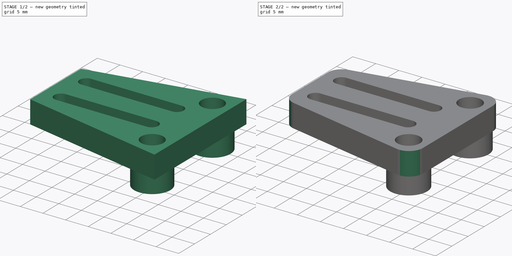
[diagram: build sequence overview — one tinted view per stage of 2, left to right]
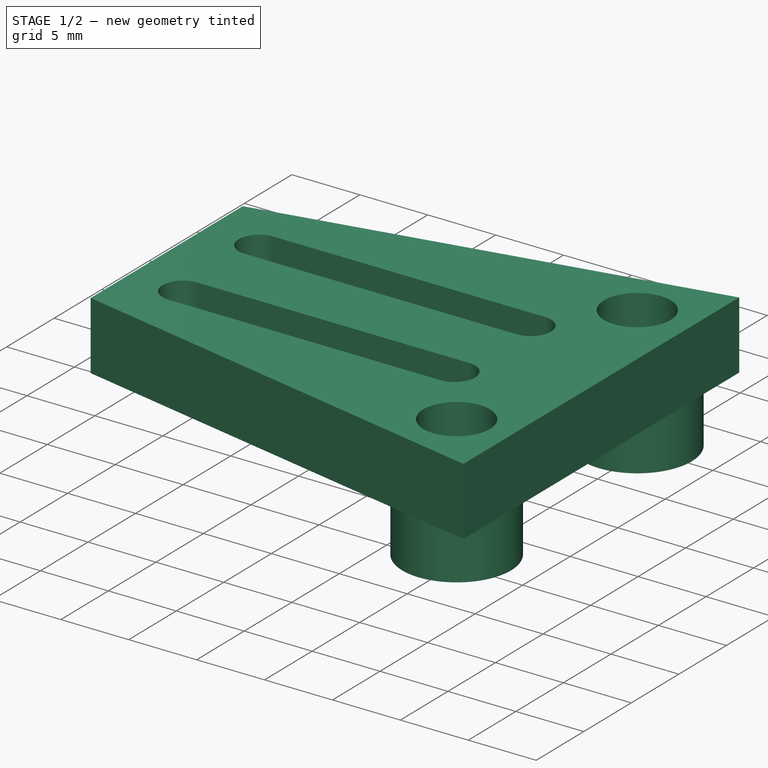
[diagram: stage 1 of 2 — iso view after this stage's code; geometry added in this stage tinted green]
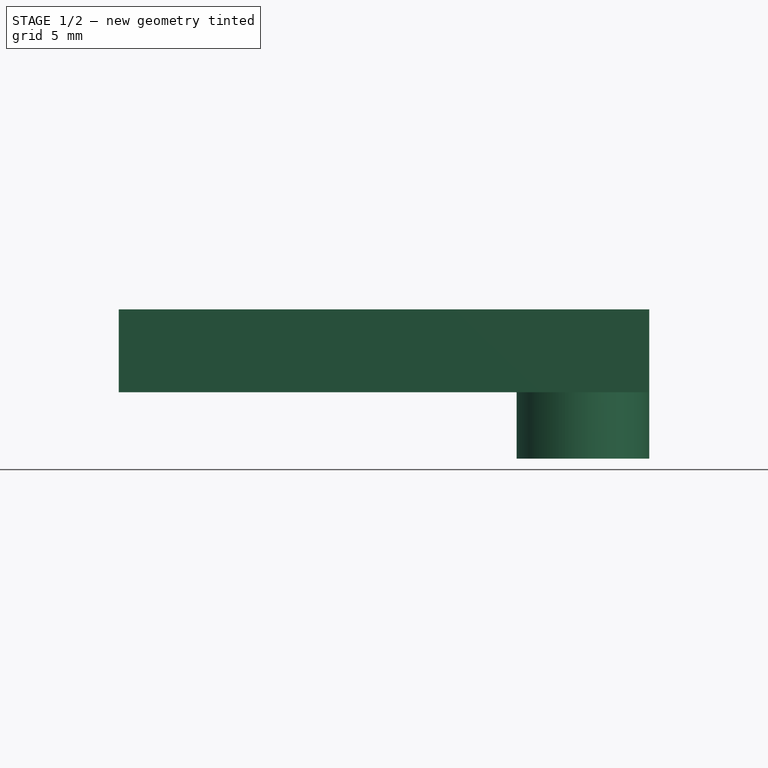
[diagram: stage 1 of 2 — front view after this stage's code; geometry added in this stage tinted green]
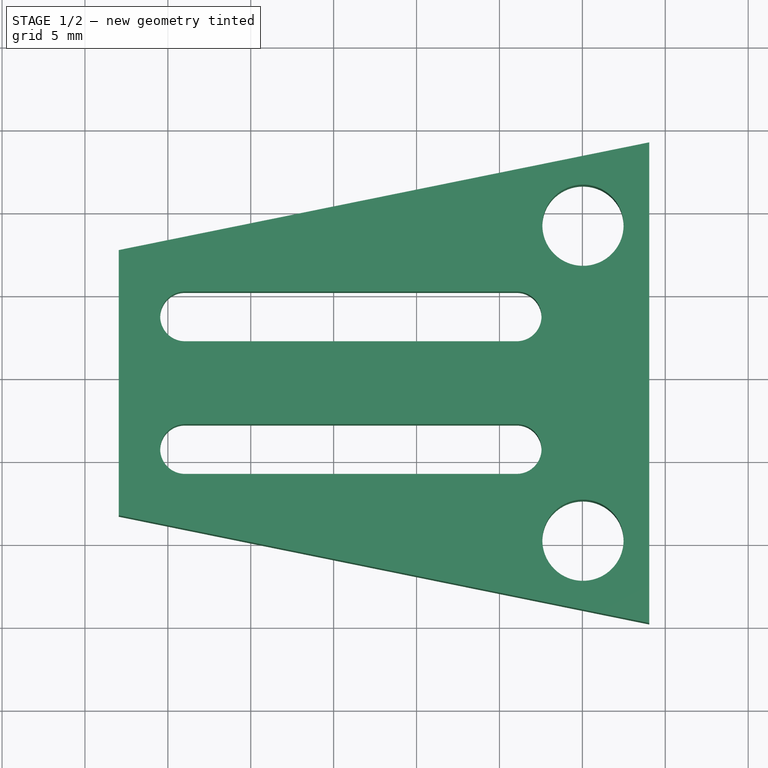
[diagram: stage 1 of 2 — top view after this stage's code; geometry added in this stage tinted green]
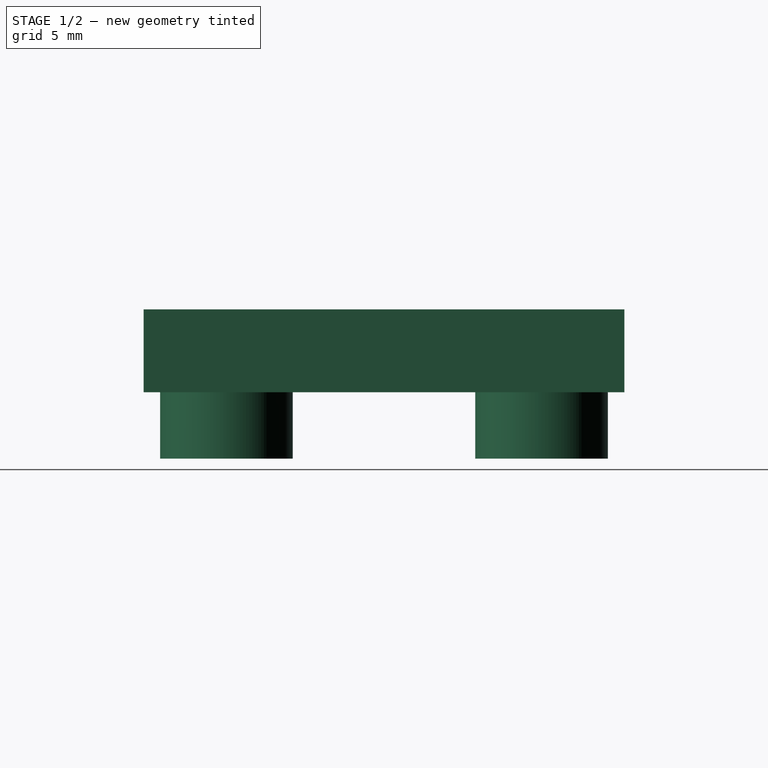
[diagram: stage 1 of 2 — right view after this stage's code; geometry added in this stage tinted green]
FCSTD DOCUMENT  (FreeCAD 1.0R38641 +468 (Git))
Label: 01end_switch
License: All rights reserved
LicenseURL: https://en.wikipedia.org/wiki/All_rights_reserved
objects: Sketcher::SketchObject×2, PartDesign::Pad×2, PartDesign::Fillet×1, PartDesign::Chamfer×1, PartDesign::Body×1
note: 17 computed .brp shape members not serialized (recipe doc carries the construction recipe); baked Part::Feature solids carry a one-line shape summary decoded from their .brp

FEATURE [Sketcher::SketchObject] Sketch
  ArcFitTolerance = 1e-06
  FullyConstrained = false
  MakeInternals = false
  sketch-geometry (16):
    g0: Circle CenterX=185.037 CenterY=80.148 CenterZ=0 NormalX=0 NormalY=0 NormalZ=-1 AngleXU=0 Radius=2.45
    g1: Circle CenterX=185.037 CenterY=99.148 CenterZ=0 NormalX=0 NormalY=0 NormalZ=-1 AngleXU=0 Radius=2.45
    g2: ArcOfCircle CenterX=181.037 CenterY=93.648 CenterZ=0 NormalX=0 NormalY=0 NormalZ=1 AngleXU=0 Radius=1.5 StartAngle=4.71239 EndAngle=7.85398
    g3: ArcOfCircle CenterX=161.037 CenterY=93.648 CenterZ=0 NormalX=0 NormalY=0 NormalZ=1 AngleXU=0 Radius=1.5 StartAngle=1.5708 EndAngle=4.71239
    g4: LineSegment StartX=181.037 StartY=92.148 StartZ=0 EndX=161.037 EndY=92.148 EndZ=0
    g5: LineSegment StartX=181.037 StartY=95.148 StartZ=0 EndX=161.037 EndY=95.148 EndZ=0
    g6: ArcOfCircle CenterX=181.037 CenterY=85.648 CenterZ=0 NormalX=0 NormalY=0 NormalZ=1 AngleXU=0 Radius=1.5 StartAngle=4.71239 EndAngle=7.85398
    g7: ArcOfCircle CenterX=161.037 CenterY=85.648 CenterZ=0 NormalX=0 NormalY=0 NormalZ=1 AngleXU=0 Radius=1.5 StartAngle=1.5708 EndAngle=4.71239
    g8: LineSegment StartX=181.037 StartY=84.148 StartZ=0 EndX=161.037 EndY=84.148 EndZ=0
    g9: LineSegment StartX=181.037 StartY=87.148 StartZ=0 EndX=161.037 EndY=87.148 EndZ=0
    g10: LineSegment StartX=189.037 StartY=104.148 StartZ=0 EndX=157.037 EndY=97.648 EndZ=0
    g11: LineSegment StartX=157.037 StartY=97.648 StartZ=0 EndX=157.037 EndY=81.648 EndZ=0
    g12: LineSegment StartX=157.037 StartY=81.648 StartZ=0 EndX=189.037 EndY=75.148 EndZ=0
    g13: LineSegment StartX=189.037 StartY=104.148 StartZ=0 EndX=189.037 EndY=75.148 EndZ=0
    g14: GeomPoint X=185.037 Y=89.648 Z=0
    g15: LineSegment [constr] StartX=208.544 StartY=89.648 StartZ=0 EndX=137.376 EndY=89.648 EndZ=0
  constraints (38):
    c: Vertical(g0,g1)
    c: DistanceY(g0,g1) = 19
    c: Tangent(g2,g4) = 1.5708
    c: Tangent(g2,g5) = -1.5708
    c: Tangent(g3,g4) = 1.5708
    c: Tangent(g3,g5) = -1.5708
    c: Equal(g2,g3)
    c: Radius(g2) = 1.5
    c: Horizontal(g4)
    c: Tangent(g6,g8) = 1.5708
    c: Tangent(g6,g9) = -1.5708
    c: Tangent(g7,g8) = 1.5708
    c: Tangent(g7,g9) = -1.5708
    c: Equal(g6,g7)
    c: Radius(g6) = 1.5
    c: Horizontal(g8)
    c: Vertical(g3,g7)
    c: Vertical(g2,g6)
    c: Coincident(g10,g11)
    c: Vertical(g11)
    c: Coincident(g11,g12)
    c: Equal(g1,g0)
    c: Coincident(g10,g13)
    c: Coincident(g13,g12)
    c: Vertical(g13)
    c: DistanceY(g3,g10) = 4
    c: DistanceY(g11,g7) = 4
    c: DistanceX(g10,g3) = 4
    c: DistanceY(g6,g2) = 8
    c: DistanceY(g1,g10) = 5
    c: Symmetric(g0,g1,g14)
    c: PointOnObject(g14,g15)
    c: Symmetric(g2,g6,g15)
    c: DistanceX(g2,g1) = 4
    c: DistanceX(g1,g10) = 4
    c: DistanceY(g12,g0) = 5
    c: Diameter(g1) = 4.9
    c: DistanceX(g3,g2) = 20
FEATURE [PartDesign::Pad] Pad
  Direction = (0,0,1)
  Length = 5
  Length2 = 10
  Profile = -> Sketch
  ReferenceAxis = -> Sketch [N_Axis]
  Refine = true
  Suppressed = false
  Type = 0
FEATURE [Sketcher::SketchObject] Sketch001
  ArcFitTolerance = 1e-06
  ExternalGeometry = -> [Sketch]
  FullyConstrained = false
  MakeInternals = false
  MapMode = 5
  Placement = pos=(0,0,5) rot=(0,0,1;0rad)
  sketch-geometry (4):
    g0: Circle CenterX=185.037 CenterY=99.148 CenterZ=0 NormalX=0 NormalY=0 NormalZ=1 AngleXU=0 Radius=4
    g1: Circle CenterX=185.037 CenterY=80.148 CenterZ=0 NormalX=0 NormalY=0 NormalZ=1 AngleXU=0 Radius=4
    g2: Circle CenterX=185.037 CenterY=99.148 CenterZ=0 NormalX=0 NormalY=0 NormalZ=1 AngleXU=0 Radius=2.48421
    g3: Circle CenterX=185.037 CenterY=80.148 CenterZ=0 NormalX=0 NormalY=0 NormalZ=1 AngleXU=0 Radius=2.48804
  constraints (6):
    c: Equal(g1,g0)
    c: Coincident(g-4,g1)
    c: Coincident(g-3,g0)
    c: Coincident(g2,g0)
    c: Coincident(g3,g1)
    c: Tangent(g-5,g0)
FEATURE [PartDesign::Pad] Pad001
  BaseFeature = -> Pad
  Direction = (0,0,1)
  Length = 9
  Length2 = 10
  Profile = -> Sketch001
  ReferenceAxis = -> Sketch001 [N_Axis]
  Refine = true
  Reversed = true
  Suppressed = false
  Type = 0
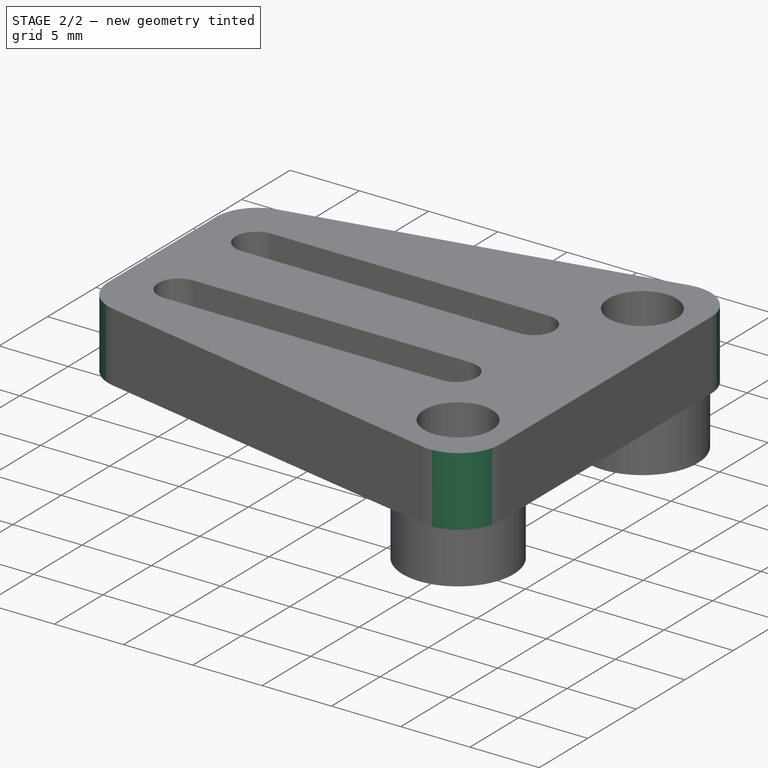
[diagram: stage 2 of 2 — iso view after this stage's code; geometry added in this stage tinted green]
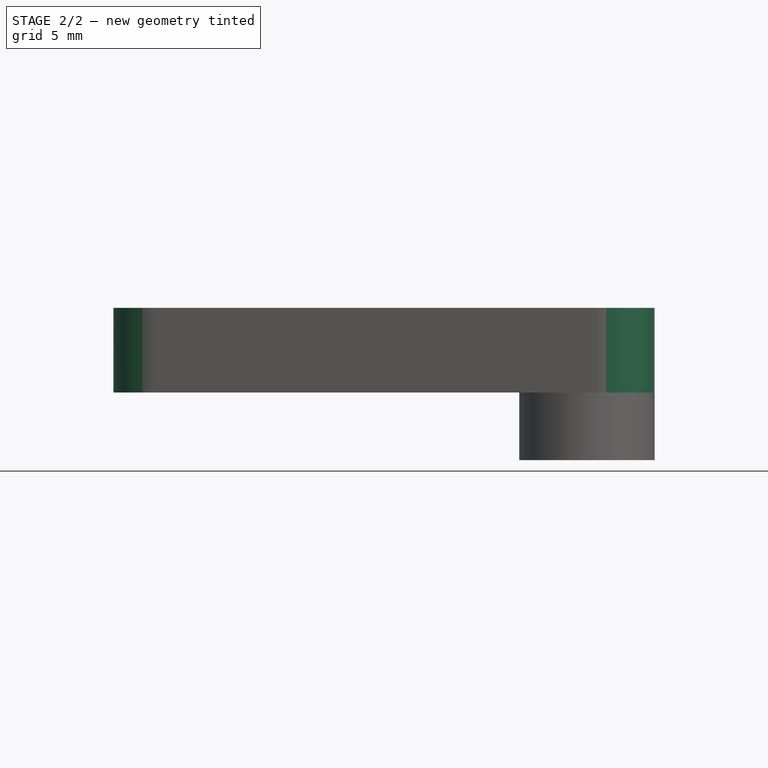
[diagram: stage 2 of 2 — front view after this stage's code; geometry added in this stage tinted green]
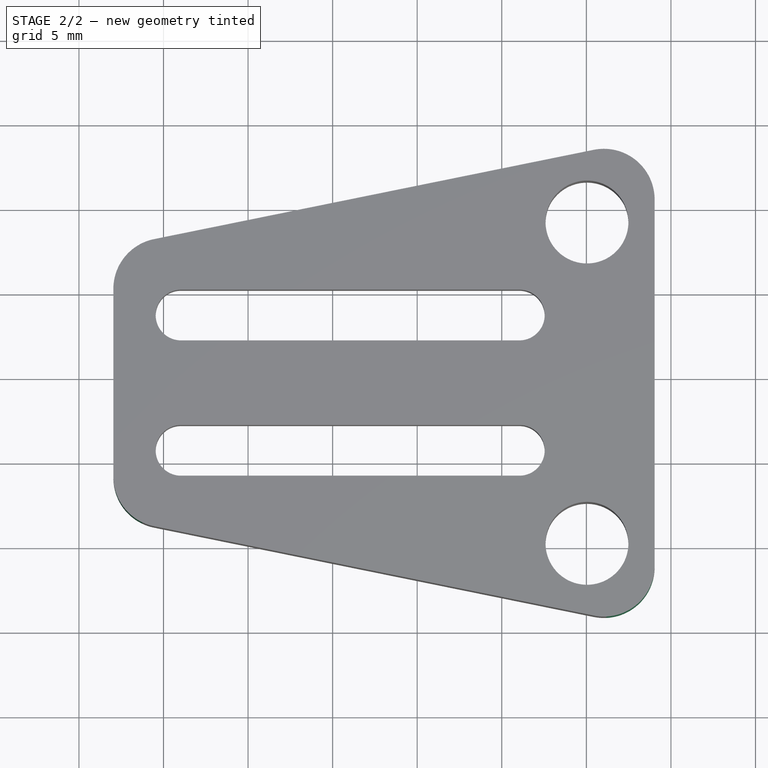
[diagram: stage 2 of 2 — top view after this stage's code; geometry added in this stage tinted green]
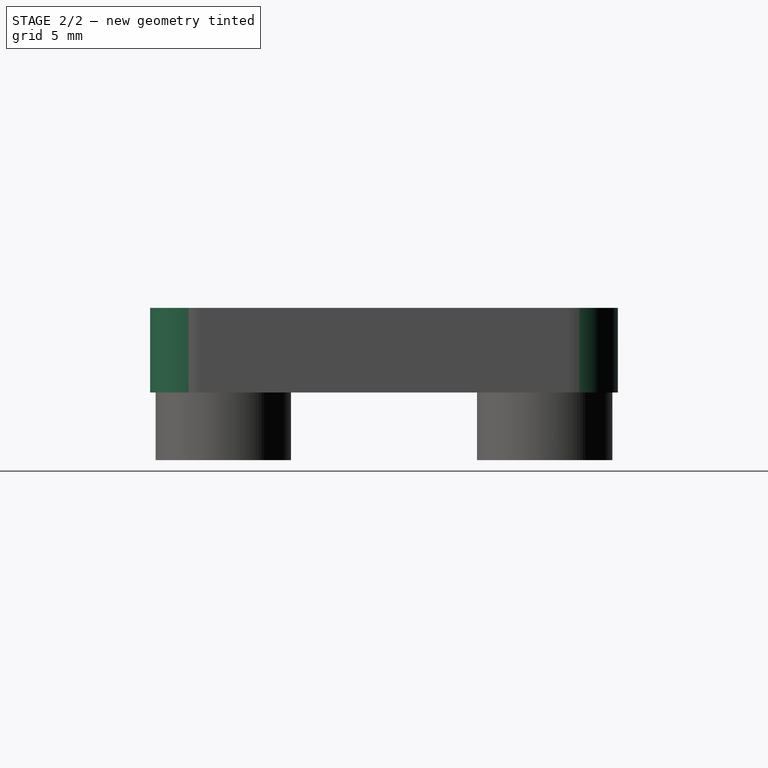
[diagram: stage 2 of 2 — right view after this stage's code; geometry added in this stage tinted green]
FEATURE [PartDesign::Fillet] Fillet
  Base = -> Pad001 [Edge1,Edge22,Edge2,Edge5]
  BaseFeature = -> Pad001
  Radius = 3
  Refine = true
  SupportTransform = false
  Suppressed = false
  UseAllEdges = false
FEATURE [PartDesign::Chamfer] Chamfer
  Angle = 45
  Base = -> Fillet [Edge21,Edge20,Edge16,Edge15]
  BaseFeature = -> Fillet
  ChamferType = 0
  FlipDirection = false
  Refine = true
  Size = 1
  Size2 = 1
  SupportTransform = false
  Suppressed = false
  UseAllEdges = false
FEATURE [PartDesign::Body] Body
  AllowCompound = false
  Group = -> [Sketch,Pad,Sketch001,Pad001,Fillet,Chamfer]
  Origin = -> Origin
  Tip = -> Chamfer
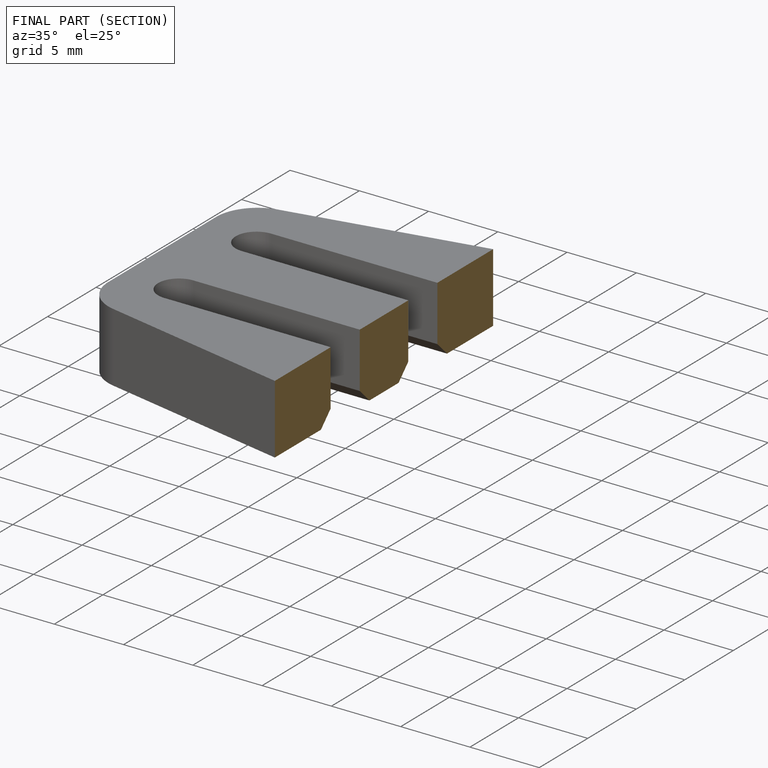
[diagram: finished part — half-section view (interior)]
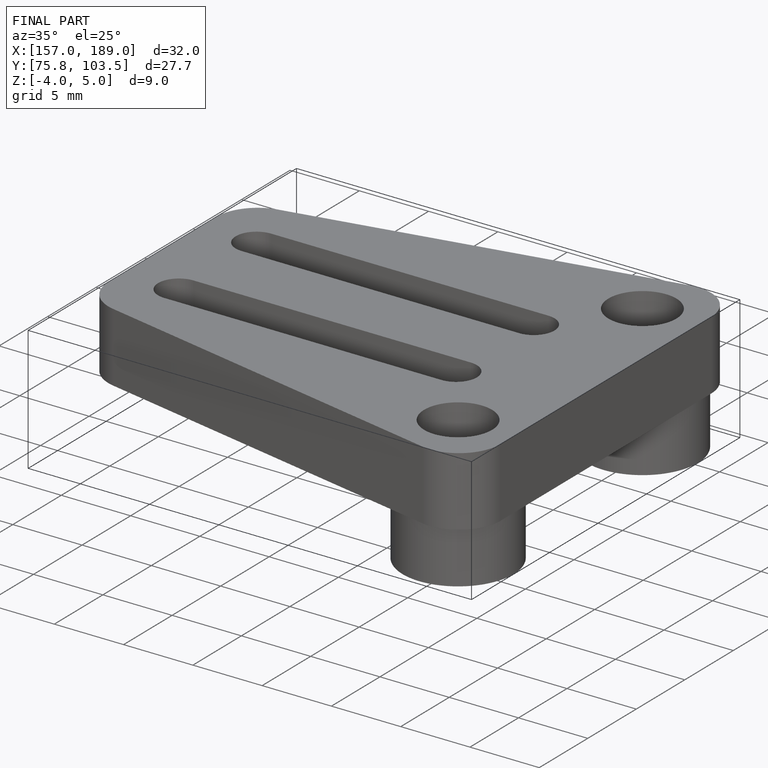
[diagram: finished part — iso view with bounding-box wireframe]
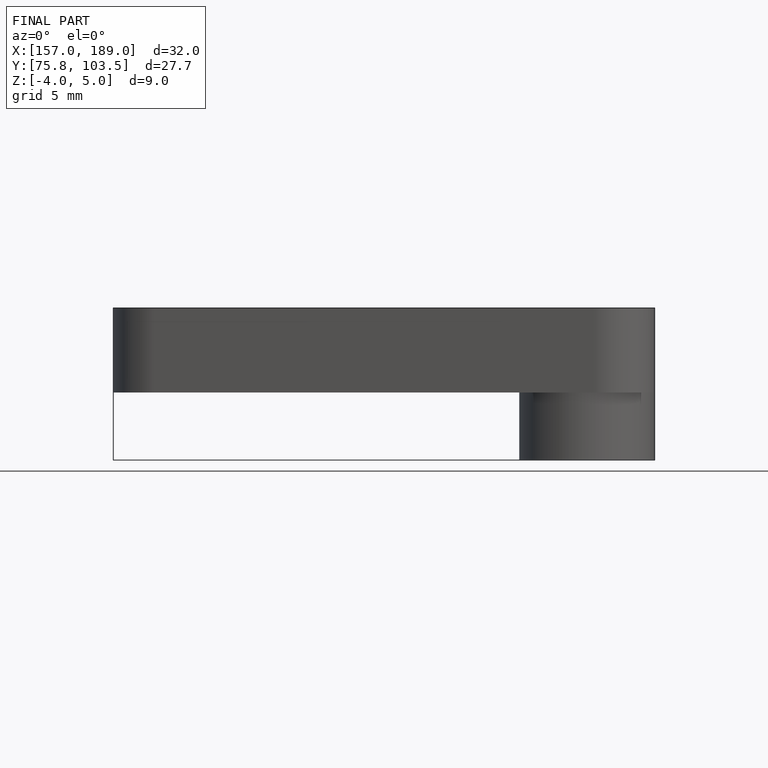
[diagram: finished part — front view with bounding-box wireframe]
